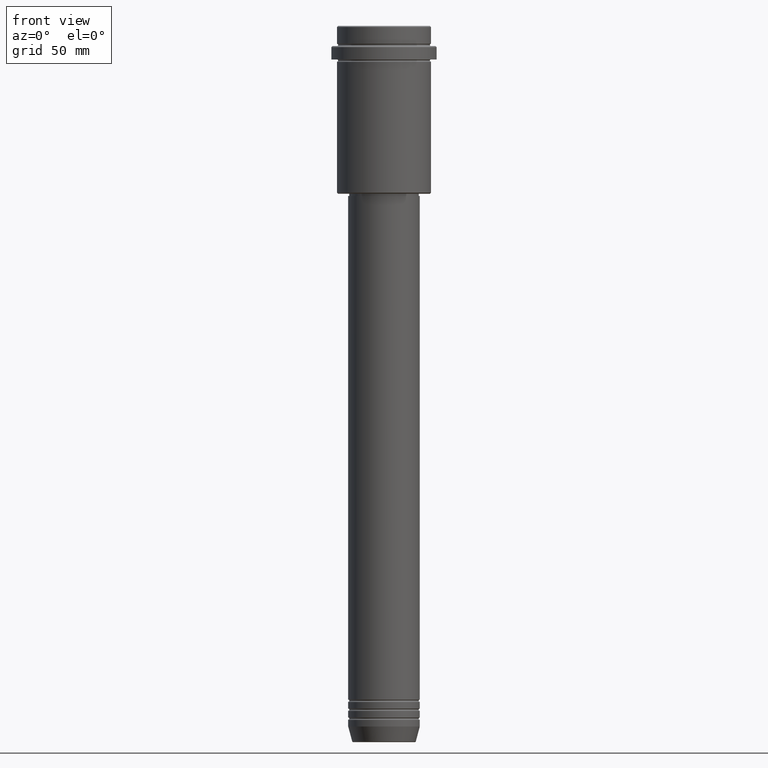
[diagram: clean part render]
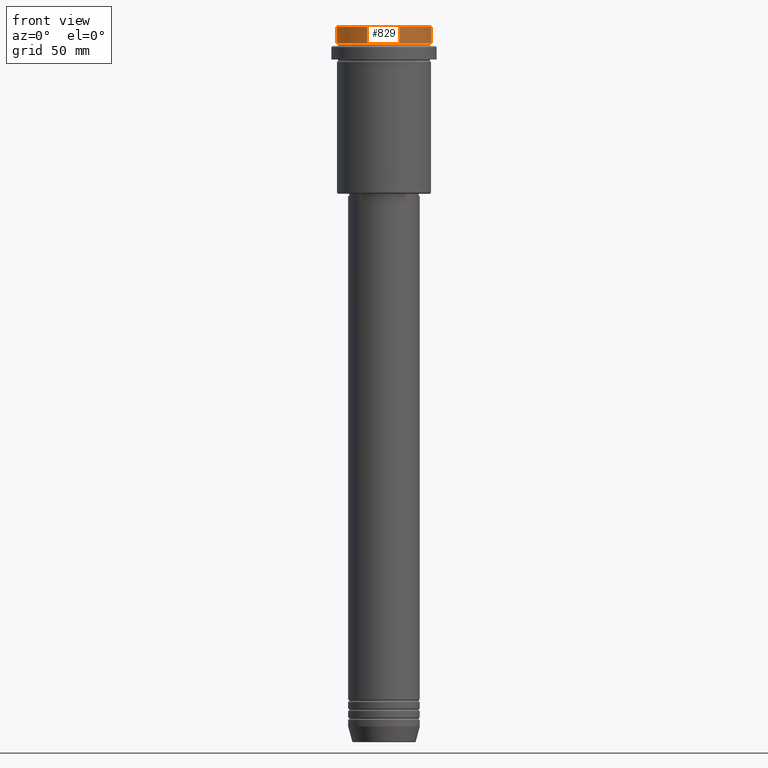
[diagram: same view with one face highlighted and labeled with its STEP entity id]
A machine part, front view. The second image highlights one B-rep face of the part: STEP entity #829.
In plain terms, the highlighted cylindrical surface (partial cylindrical patch) has radius 21 mm, axis along (-0, -0, 1).
Its self-contained STEP definition (entity closure, byte-faithful):
#42 = CARTESIAN_POINT ( 'NONE',  ( -21.00000000000000000, 2.571758278209441661E-15, -0.4999999999999553690 ) ) ;
#49 = DIRECTION ( 'NONE',  ( -0.000000000000000000, -0.000000000000000000, 1.000000000000000000 ) ) ;
#73 = CARTESIAN_POINT ( 'NONE',  ( 0.000000000000000000, 0.000000000000000000, -0.4999999999999553690 ) ) ;
#83 = CYLINDRICAL_SURFACE ( 'NONE', #469, 21.00000000000000000 ) ;
#138 = EDGE_LOOP ( 'NONE', ( #580, #906, #152, #1004 ) ) ;
#152 = ORIENTED_EDGE ( 'NONE', *, *, #435, .T. ) ;
#176 = VERTEX_POINT ( 'NONE', #42 ) ;
#186 = AXIS2_PLACEMENT_3D ( 'NONE', #73, #1287, #524 ) ;
#249 = CARTESIAN_POINT ( 'NONE',  ( 0.000000000000000000, 0.000000000000000000, -7.999999999999998224 ) ) ;
#294 = EDGE_CURVE ( 'NONE', #1181, #1375, #682, .T. ) ;
#313 = LINE ( 'NONE', #960, #1019 ) ;
#435 = EDGE_CURVE ( 'NONE', #1375, #1277, #627, .T. ) ;
#468 = EDGE_CURVE ( 'NONE', #1277, #176, #495, .T. ) ;
#469 = AXIS2_PLACEMENT_3D ( 'NONE', #1075, #980, #648 ) ;
#492 = DIRECTION ( 'NONE',  ( 1.000000000000000000, 0.000000000000000000, 0.000000000000000000 ) ) ;
#495 = CIRCLE ( 'NONE', #186, 21.00000000000000000 ) ;
#501 = DIRECTION ( 'NONE',  ( -0.000000000000000000, -0.000000000000000000, 1.000000000000000000 ) ) ;
#524 = DIRECTION ( 'NONE',  ( 1.000000000000000000, 0.000000000000000000, 0.000000000000000000 ) ) ;
#552 = EDGE_CURVE ( 'NONE', #1181, #176, #313, .T. ) ;
#566 = VECTOR ( 'NONE', #501, 1000.000000000000000 ) ;
#580 = ORIENTED_EDGE ( 'NONE', *, *, #552, .F. ) ;
#627 = LINE ( 'NONE', #1336, #566 ) ;
#648 = DIRECTION ( 'NONE',  ( 1.000000000000000000, 0.000000000000000000, 0.000000000000000000 ) ) ;
#682 = CIRCLE ( 'NONE', #930, 21.00000000000000000 ) ;
#760 = CARTESIAN_POINT ( 'NONE',  ( 21.00000000000000000, 0.000000000000000000, -0.4999999999999553690 ) ) ;
#829 = ADVANCED_FACE ( 'NONE', ( #1151 ), #83, .T. ) ;
#906 = ORIENTED_EDGE ( 'NONE', *, *, #294, .T. ) ;
#930 = AXIS2_PLACEMENT_3D ( 'NONE', #249, #49, #492 ) ;
#960 = CARTESIAN_POINT ( 'NONE',  ( -21.00000000000000000, 2.571758278209441661E-15, 0.000000000000000000 ) ) ;
#980 = DIRECTION ( 'NONE',  ( -0.000000000000000000, -0.000000000000000000, 1.000000000000000000 ) ) ;
#1004 = ORIENTED_EDGE ( 'NONE', *, *, #468, .T. ) ;
#1019 = VECTOR ( 'NONE', #1407, 1000.000000000000000 ) ;
#1075 = CARTESIAN_POINT ( 'NONE',  ( 0.000000000000000000, 0.000000000000000000, 0.000000000000000000 ) ) ;
#1151 = FACE_OUTER_BOUND ( 'NONE', #138, .T. ) ;
#1162 = CARTESIAN_POINT ( 'NONE',  ( -21.00000000000000000, 2.571758278209441661E-15, -7.999999999999998224 ) ) ;
#1181 = VERTEX_POINT ( 'NONE', #1162 ) ;
#1277 = VERTEX_POINT ( 'NONE', #760 ) ;
#1287 = DIRECTION ( 'NONE',  ( 0.000000000000000000, 0.000000000000000000, -1.000000000000000000 ) ) ;
#1336 = CARTESIAN_POINT ( 'NONE',  ( 21.00000000000000000, 0.000000000000000000, 0.000000000000000000 ) ) ;
#1375 = VERTEX_POINT ( 'NONE', #1391 ) ;
#1391 = CARTESIAN_POINT ( 'NONE',  ( 21.00000000000000000, 0.000000000000000000, -7.999999999999998224 ) ) ;
#1407 = DIRECTION ( 'NONE',  ( -0.000000000000000000, -0.000000000000000000, 1.000000000000000000 ) ) ;